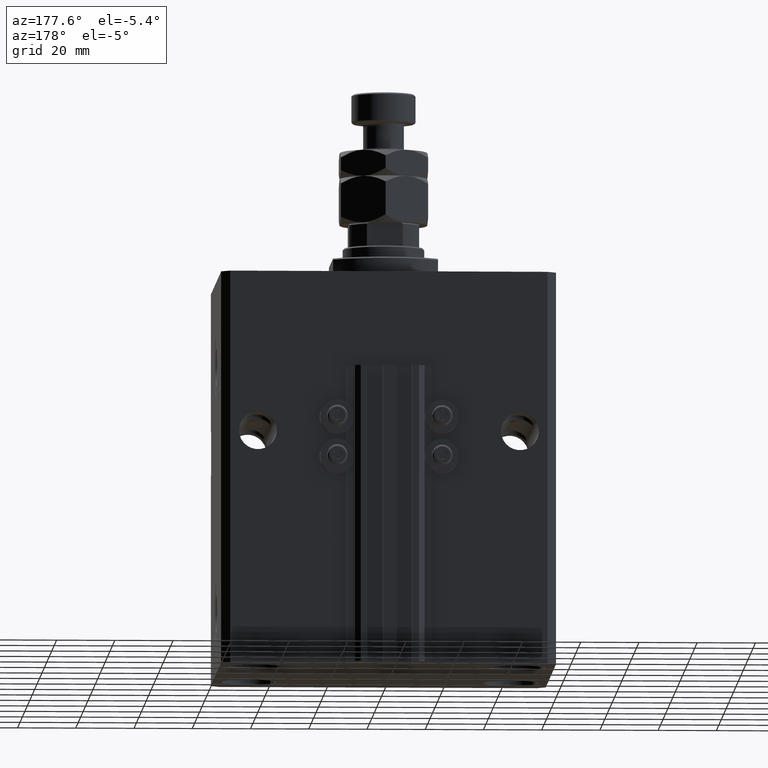
[diagram: clean part render]
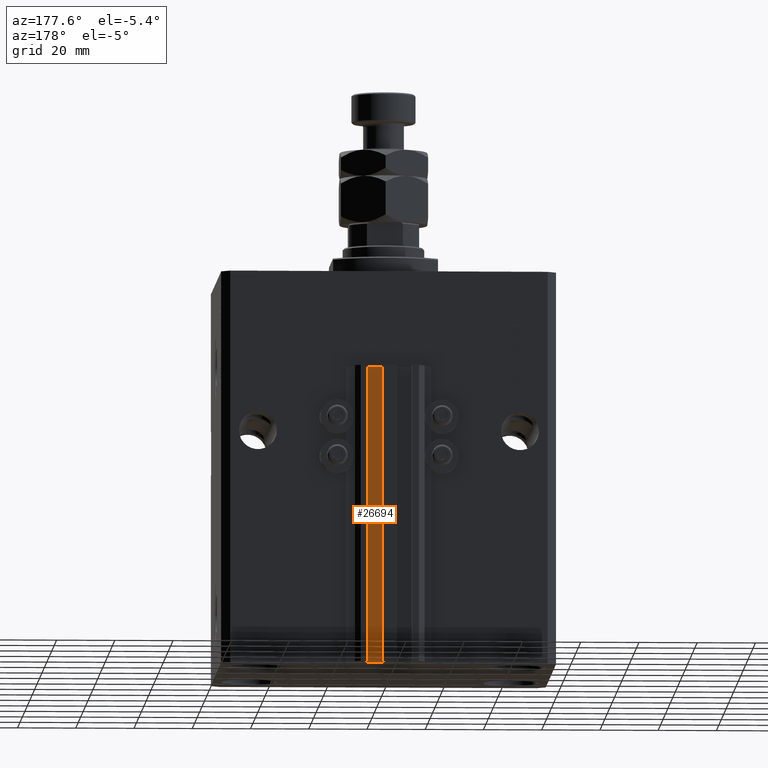
[diagram: same view with one face highlighted and labeled with its STEP entity id]
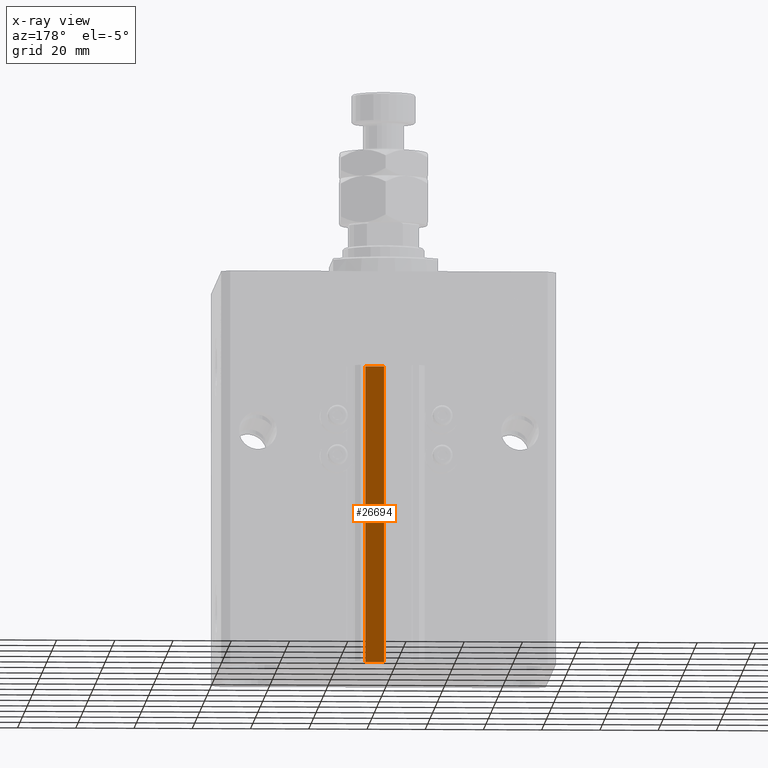
[diagram: x-ray of the same camera — body ghosted, the highlighted face saturated]
A machine part, auxiliary view. The second image highlights one B-rep face of the part: STEP entity #26694.
The next image is the same camera in x-ray: the body ghosted, the highlighted face saturated — about 0% of this face is hidden behind the body in this view.
In plain terms, the highlighted planar face has unit normal (0, 1, 0).
Its self-contained STEP definition (entity closure, byte-faithful):
#983 = CARTESIAN_POINT ( 'NONE',  ( 8.199999999999999289, 46.99999999999998579, -135.0000000000000000 ) ) ;
#1238 = PLANE ( 'NONE',  #31096 ) ;
#2237 = DIRECTION ( 'NONE',  ( 0.000000000000000000, 0.000000000000000000, 1.000000000000000000 ) ) ;
#3692 = LINE ( 'NONE', #43303, #12235 ) ;
#3908 = VERTEX_POINT ( 'NONE', #46398 ) ;
#4732 = ORIENTED_EDGE ( 'NONE', *, *, #28959, .F. ) ;
#5452 = CARTESIAN_POINT ( 'NONE',  ( 8.199999999999999289, 46.99999999999998579, -135.0000000000000000 ) ) ;
#5658 = EDGE_CURVE ( 'NONE', #3908, #35173, #46851, .T. ) ;
#6473 = DIRECTION ( 'NONE',  ( 0.000000000000000000, 0.000000000000000000, 1.000000000000000000 ) ) ;
#7690 = DIRECTION ( 'NONE',  ( -1.000000000000000000, 0.000000000000000000, 0.000000000000000000 ) ) ;
#7784 = VECTOR ( 'NONE', #35287, 1000.000000000000000 ) ;
#9577 = LINE ( 'NONE', #5452, #46667 ) ;
#12235 = VECTOR ( 'NONE', #2237, 1000.000000000000000 ) ;
#15558 = VECTOR ( 'NONE', #7690, 1000.000000000000000 ) ;
#15624 = VERTEX_POINT ( 'NONE', #40262 ) ;
#16522 = EDGE_CURVE ( 'NONE', #3908, #31191, #9577, .T. ) ;
#16944 = DIRECTION ( 'NONE',  ( 0.000000000000000000, 0.000000000000000000, 1.000000000000000000 ) ) ;
#18776 = LINE ( 'NONE', #30606, #15558 ) ;
#20837 = CARTESIAN_POINT ( 'NONE',  ( 8.199999999999999289, 46.99999999999998579, -33.00000000000000000 ) ) ;
#22861 = CARTESIAN_POINT ( 'NONE',  ( 1.800000000000000933, 46.99999999999998579, -135.0000000000000000 ) ) ;
#25163 = ORIENTED_EDGE ( 'NONE', *, *, #16522, .F. ) ;
#26694 = ADVANCED_FACE ( 'NONE', ( #48830 ), #1238, .T. ) ;
#26818 = CARTESIAN_POINT ( 'NONE',  ( 8.199999999999999289, 46.99999999999998579, -135.0000000000000000 ) ) ;
#27783 = EDGE_LOOP ( 'NONE', ( #4732, #25163, #37524, #43317 ) ) ;
#27796 = EDGE_CURVE ( 'NONE', #35173, #15624, #3692, .T. ) ;
#28959 = EDGE_CURVE ( 'NONE', #31191, #15624, #18776, .T. ) ;
#30606 = CARTESIAN_POINT ( 'NONE',  ( 8.199999999999999289, 46.99999999999998579, -33.00000000000000000 ) ) ;
#31096 = AXIS2_PLACEMENT_3D ( 'NONE', #983, #48570, #16944 ) ;
#31191 = VERTEX_POINT ( 'NONE', #20837 ) ;
#35173 = VERTEX_POINT ( 'NONE', #22861 ) ;
#35287 = DIRECTION ( 'NONE',  ( -1.000000000000000000, 0.000000000000000000, 0.000000000000000000 ) ) ;
#37524 = ORIENTED_EDGE ( 'NONE', *, *, #5658, .T. ) ;
#40262 = CARTESIAN_POINT ( 'NONE',  ( 1.800000000000000933, 46.99999999999998579, -33.00000000000000000 ) ) ;
#43303 = CARTESIAN_POINT ( 'NONE',  ( 1.800000000000000933, 46.99999999999998579, -135.0000000000000000 ) ) ;
#43317 = ORIENTED_EDGE ( 'NONE', *, *, #27796, .T. ) ;
#46398 = CARTESIAN_POINT ( 'NONE',  ( 8.199999999999999289, 46.99999999999998579, -135.0000000000000000 ) ) ;
#46667 = VECTOR ( 'NONE', #6473, 1000.000000000000000 ) ;
#46851 = LINE ( 'NONE', #26818, #7784 ) ;
#48570 = DIRECTION ( 'NONE',  ( 0.000000000000000000, 1.000000000000000000, -0.000000000000000000 ) ) ;
#48830 = FACE_OUTER_BOUND ( 'NONE', #27783, .T. ) ;